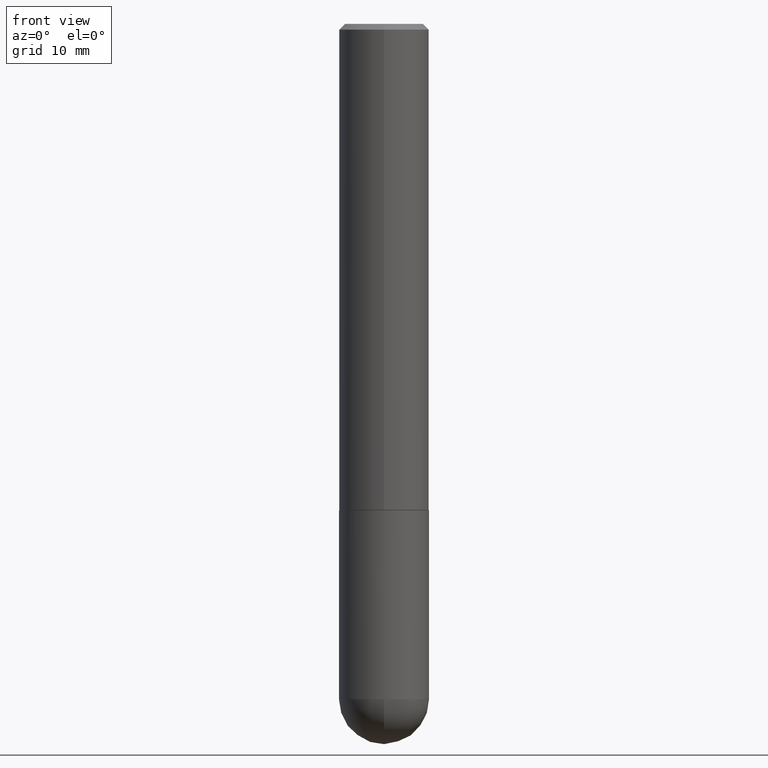
[diagram: clean part render]
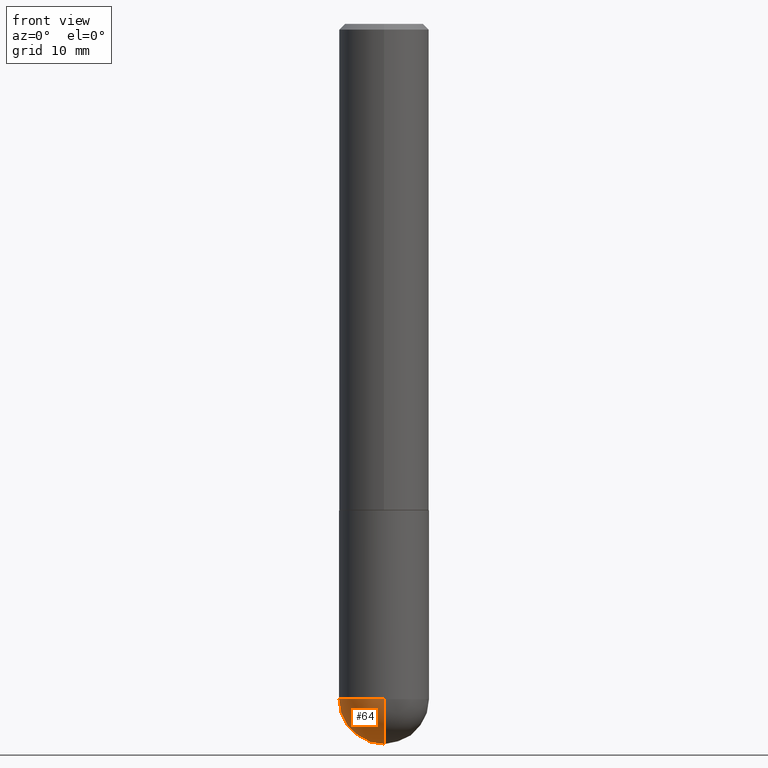
[diagram: same view with one face highlighted and labeled with its STEP entity id]
A machine part, front view. The second image highlights one B-rep face of the part: STEP entity #64.
In plain terms, the highlighted spherical surface has radius 3.9688 mm.
Its self-contained STEP definition (entity closure, byte-faithful):
#8 = DIRECTION ( 'NONE',  ( 1.000000000000000000, -6.982962677686262766E-15, 0.000000000000000000 ) ) ;
#12 = DIRECTION ( 'NONE',  ( -2.445468806185136597E-29, 3.491481338843145583E-15, 1.000000000000000000 ) ) ;
#20 = CARTESIAN_POINT ( 'NONE',  ( 5.789233224183170584E-29, -9.193318162129576161E-15, -2.500000000000000000 ) ) ;
#29 = DIRECTION ( 'NONE',  ( 1.000000000000000000, -6.982962677686265922E-15, 4.883557194083112340E-29 ) ) ;
#31 = DIRECTION ( 'NONE',  ( 6.982962677686265922E-15, 1.000000000000000000, 0.000000000000000000 ) ) ;
#39 = DIRECTION ( 'NONE',  ( 1.000000000000000000, -6.982962677686262766E-15, 0.000000000000000000 ) ) ;
#54 = AXIS2_PLACEMENT_3D ( 'NONE', #291, #101, #266 ) ;
#63 = CIRCLE ( 'NONE', #294, 0.1562500000000002498 ) ;
#64 = ADVANCED_FACE ( 'NONE', ( #304 ), #169, .T. ) ;
#72 = CARTESIAN_POINT ( 'NONE',  ( -0.1562500000000000000, -5.928166919315270321E-15, -2.343750000000000000 ) ) ;
#79 = AXIS2_PLACEMENT_3D ( 'NONE', #316, #29, #31 ) ;
#80 = AXIS2_PLACEMENT_3D ( 'NONE', #143, #226, #8 ) ;
#101 = DIRECTION ( 'NONE',  ( -1.000000000000000000, 6.982962677686265922E-15, -4.883557194083112340E-29 ) ) ;
#143 = CARTESIAN_POINT ( 'NONE',  ( 5.731567514496413899E-29, -8.183159387913622595E-15, -2.343750000000000000 ) ) ;
#155 = ORIENTED_EDGE ( 'NONE', *, *, #337, .F. ) ;
#156 = CARTESIAN_POINT ( 'NONE',  ( -1.110223024625101517E-15, -0.1562500000000085487, -2.343749999999999556 ) ) ;
#169 = SPHERICAL_SURFACE ( 'NONE', #54, 0.1562500000000002498 ) ;
#193 = DIRECTION ( 'NONE',  ( -7.105427357601000281E-15, -1.000000000000000000, 0.000000000000000000 ) ) ;
#206 = VERTEX_POINT ( 'NONE', #20 ) ;
#210 = CIRCLE ( 'NONE', #80, 0.1562500000000000000 ) ;
#222 = EDGE_CURVE ( 'NONE', #206, #306, #251, .T. ) ;
#223 = VERTEX_POINT ( 'NONE', #156 ) ;
#226 = DIRECTION ( 'NONE',  ( -2.445468806185136597E-29, 3.491481338843145583E-15, 1.000000000000000000 ) ) ;
#235 = CARTESIAN_POINT ( 'NONE',  ( 5.400447736582527652E-29, -8.657341756053672891E-15, -2.343750000000000000 ) ) ;
#240 = EDGE_LOOP ( 'NONE', ( #317, #353, #155, #289 ) ) ;
#251 = CIRCLE ( 'NONE', #79, 0.1562500000000002498 ) ;
#266 = DIRECTION ( 'NONE',  ( 6.982962677686265922E-15, 1.000000000000000000, -3.496765431890251398E-15 ) ) ;
#281 = VERTEX_POINT ( 'NONE', #72 ) ;
#289 = ORIENTED_EDGE ( 'NONE', *, *, #345, .F. ) ;
#291 = CARTESIAN_POINT ( 'NONE',  ( 5.400447736582527652E-29, -8.657341756053672891E-15, -2.343750000000000000 ) ) ;
#294 = AXIS2_PLACEMENT_3D ( 'NONE', #235, #343, #193 ) ;
#298 = CARTESIAN_POINT ( 'NONE',  ( 5.731567514496413899E-29, -8.183159387913622595E-15, -2.343750000000000000 ) ) ;
#304 = FACE_OUTER_BOUND ( 'NONE', #240, .T. ) ;
#306 = VERTEX_POINT ( 'NONE', #328 ) ;
#316 = CARTESIAN_POINT ( 'NONE',  ( 5.400447736582527652E-29, -8.657341756053672891E-15, -2.343750000000000000 ) ) ;
#317 = ORIENTED_EDGE ( 'NONE', *, *, #222, .F. ) ;
#328 = CARTESIAN_POINT ( 'NONE',  ( 1.091087918388535577E-15, 0.1562499999999916733, -2.343750000000000444 ) ) ;
#337 = EDGE_CURVE ( 'NONE', #281, #223, #372, .T. ) ;
#343 = DIRECTION ( 'NONE',  ( -1.000000000000000000, 7.105427357601001070E-15, -4.926315508542082329E-29 ) ) ;
#345 = EDGE_CURVE ( 'NONE', #306, #281, #210, .T. ) ;
#353 = ORIENTED_EDGE ( 'NONE', *, *, #378, .T. ) ;
#372 = CIRCLE ( 'NONE', #384, 0.1562500000000000000 ) ;
#378 = EDGE_CURVE ( 'NONE', #206, #223, #63, .T. ) ;
#384 = AXIS2_PLACEMENT_3D ( 'NONE', #298, #12, #39 ) ;